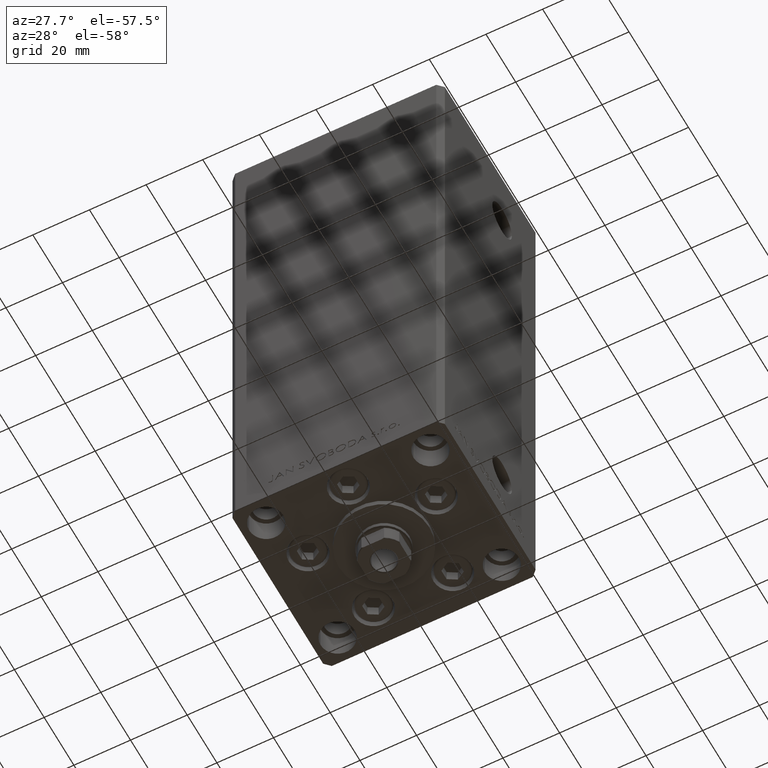
[diagram: clean part render]
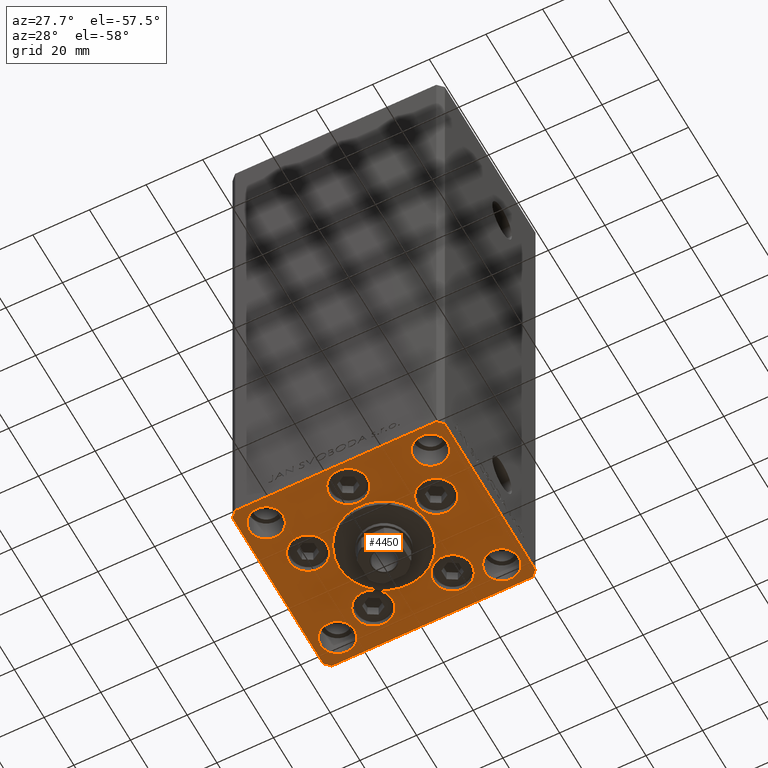
[diagram: same view with one face highlighted and labeled with its STEP entity id]
A machine part, auxiliary view. The second image highlights one B-rep face of the part: STEP entity #4450.
In plain terms, the highlighted planar face has unit normal (0, 0, -1).
Its self-contained STEP definition (entity closure, byte-faithful):
#234 = AXIS2_PLACEMENT_3D ( 'NONE', #21097, #47510, #13120 ) ;
#334 = FACE_BOUND ( 'NONE', #29602, .T. ) ;
#355 = VERTEX_POINT ( 'NONE', #5727 ) ;
#958 = DIRECTION ( 'NONE',  ( 1.000000000000000000, 0.000000000000000000, 0.000000000000000000 ) ) ;
#1072 = CARTESIAN_POINT ( 'NONE',  ( 6.750000000001552536, -24.00000000000001066, 0.000000000000000000 ) ) ;
#1219 = ORIENTED_EDGE ( 'NONE', *, *, #41387, .T. ) ;
#1314 = CARTESIAN_POINT ( 'NONE',  ( -37.50000000000000000, -30.50000000000004263, 0.000000000000000000 ) ) ;
#1488 = CARTESIAN_POINT ( 'NONE',  ( -37.50000000000001421, 30.50000000000000000, 0.000000000000000000 ) ) ;
#1574 = VERTEX_POINT ( 'NONE', #4881 ) ;
#1720 = LINE ( 'NONE', #27433, #40443 ) ;
#2316 = EDGE_CURVE ( 'NONE', #46093, #33522, #25542, .T. ) ;
#2592 = DIRECTION ( 'NONE',  ( 1.000000000000000000, 0.000000000000000000, 0.000000000000000000 ) ) ;
#2709 = EDGE_LOOP ( 'NONE', ( #19123, #30760 ) ) ;
#2819 = EDGE_CURVE ( 'NONE', #14636, #39781, #9950, .T. ) ;
#2868 = ORIENTED_EDGE ( 'NONE', *, *, #38915, .T. ) ;
#3171 = AXIS2_PLACEMENT_3D ( 'NONE', #38399, #37659, #34406 ) ;
#4127 = EDGE_CURVE ( 'NONE', #11736, #21895, #33792, .T. ) ;
#4151 = AXIS2_PLACEMENT_3D ( 'NONE', #18129, #41304, #48791 ) ;
#4312 = EDGE_CURVE ( 'NONE', #42783, #46599, #34617, .T. ) ;
#4450 = ADVANCED_FACE ( 'NONE', ( #19544, #16047, #4569, #27984, #34728, #19791, #27513, #24001, #46461, #334, #23759 ), #42701, .T. ) ;
#4569 = FACE_BOUND ( 'NONE', #12017, .T. ) ;
#4820 = DIRECTION ( 'NONE',  ( 1.000000000000000000, 0.000000000000000000, 0.000000000000000000 ) ) ;
#4825 = LINE ( 'NONE', #1314, #33252 ) ;
#4881 = CARTESIAN_POINT ( 'NONE',  ( 15.87741699796952410, -8.000000000000000000, 0.000000000000000000 ) ) ;
#5280 = LINE ( 'NONE', #34961, #9469 ) ;
#5315 = DIRECTION ( 'NONE',  ( 0.000000000000000000, 0.000000000000000000, 1.000000000000000000 ) ) ;
#5418 = VERTEX_POINT ( 'NONE', #44669 ) ;
#5421 = DIRECTION ( 'NONE',  ( 0.000000000000000000, 0.000000000000000000, 1.000000000000000000 ) ) ;
#5521 = EDGE_CURVE ( 'NONE', #9616, #10985, #29884, .T. ) ;
#5615 = CARTESIAN_POINT ( 'NONE',  ( 0.000000000000000000, -6.938893903907228378E-15, 0.000000000000000000 ) ) ;
#5654 = AXIS2_PLACEMENT_3D ( 'NONE', #21601, #21113, #13137 ) ;
#5678 = CARTESIAN_POINT ( 'NONE',  ( -29.37741699796953654, -8.000000000000000000, 0.000000000000000000 ) ) ;
#5727 = CARTESIAN_POINT ( 'NONE',  ( -37.50000000000001421, 30.50000000000000000, 0.000000000000000000 ) ) ;
#5867 = ORIENTED_EDGE ( 'NONE', *, *, #35420, .T. ) ;
#6253 = DIRECTION ( 'NONE',  ( 1.000000000000000000, 0.000000000000000000, 0.000000000000000000 ) ) ;
#6298 = ORIENTED_EDGE ( 'NONE', *, *, #48301, .F. ) ;
#6687 = EDGE_CURVE ( 'NONE', #9518, #37121, #41836, .T. ) ;
#6868 = ORIENTED_EDGE ( 'NONE', *, *, #33331, .F. ) ;
#6935 = CARTESIAN_POINT ( 'NONE',  ( -29.00000000000000000, -23.99999999999999645, 0.000000000000000000 ) ) ;
#7317 = CARTESIAN_POINT ( 'NONE',  ( -23.00000000000000000, -23.99999999999999645, 0.000000000000000000 ) ) ;
#7927 = LINE ( 'NONE', #35067, #34947 ) ;
#8344 = CARTESIAN_POINT ( 'NONE',  ( -29.00000000000000000, 24.00000000000000711, 0.000000000000000000 ) ) ;
#8409 = AXIS2_PLACEMENT_3D ( 'NONE', #24615, #5421, #958 ) ;
#8766 = CARTESIAN_POINT ( 'NONE',  ( 35.00000000000000000, 24.00000000000000355, 0.000000000000000000 ) ) ;
#9227 = DIRECTION ( 'NONE',  ( 2.275047181608926165E-16, -1.000000000000000000, 0.000000000000000000 ) ) ;
#9357 = VERTEX_POINT ( 'NONE', #10543 ) ;
#9469 = VECTOR ( 'NONE', #46916, 1000.000000000000000 ) ;
#9518 = VERTEX_POINT ( 'NONE', #38433 ) ;
#9616 = VERTEX_POINT ( 'NONE', #8766 ) ;
#9626 = DIRECTION ( 'NONE',  ( 1.000000000000000000, 0.000000000000000000, 0.000000000000000000 ) ) ;
#9813 = ORIENTED_EDGE ( 'NONE', *, *, #27636, .F. ) ;
#9823 = CARTESIAN_POINT ( 'NONE',  ( 29.37741699796954364, -8.000000000000000000, 0.000000000000000000 ) ) ;
#9950 = LINE ( 'NONE', #32376, #30314 ) ;
#9994 = CARTESIAN_POINT ( 'NONE',  ( 29.00000000000000000, 24.00000000000000355, 0.000000000000000000 ) ) ;
#10100 = EDGE_CURVE ( 'NONE', #9357, #39343, #41933, .T. ) ;
#10543 = CARTESIAN_POINT ( 'NONE',  ( -7.241068579633241242, 19.50000000000000000, 0.000000000000000000 ) ) ;
#10585 = DIRECTION ( 'NONE',  ( 0.000000000000000000, 0.000000000000000000, 1.000000000000000000 ) ) ;
#10985 = VERTEX_POINT ( 'NONE', #17022 ) ;
#11140 = CARTESIAN_POINT ( 'NONE',  ( -16.00000000000000355, -6.938893903907228378E-15, 0.000000000000000000 ) ) ;
#11464 = EDGE_CURVE ( 'NONE', #355, #25727, #35631, .T. ) ;
#11543 = EDGE_CURVE ( 'NONE', #46599, #42783, #38846, .T. ) ;
#11736 = VERTEX_POINT ( 'NONE', #5678 ) ;
#11861 = VERTEX_POINT ( 'NONE', #40556 ) ;
#11913 = CARTESIAN_POINT ( 'NONE',  ( 20.74106857963323947, 19.50000000000000000, 0.000000000000000000 ) ) ;
#11916 = CARTESIAN_POINT ( 'NONE',  ( 13.99106857963324124, 19.50000000000000000, 0.000000000000000000 ) ) ;
#12017 = EDGE_LOOP ( 'NONE', ( #6298, #6868 ) ) ;
#12023 = EDGE_CURVE ( 'NONE', #25727, #11861, #4825, .T. ) ;
#12480 = CARTESIAN_POINT ( 'NONE',  ( -35.50000000000000711, 32.49999999999997868, 0.000000000000000000 ) ) ;
#12804 = DIRECTION ( 'NONE',  ( 1.000000000000000000, 0.000000000000000000, 0.000000000000000000 ) ) ;
#12839 = DIRECTION ( 'NONE',  ( 0.000000000000000000, 0.000000000000000000, 1.000000000000000000 ) ) ;
#13120 = DIRECTION ( 'NONE',  ( 1.000000000000000000, 0.000000000000000000, 0.000000000000000000 ) ) ;
#13137 = DIRECTION ( 'NONE',  ( 1.000000000000000000, 0.000000000000000000, 0.000000000000000000 ) ) ;
#13197 = CARTESIAN_POINT ( 'NONE',  ( -22.62741699796953299, -8.000000000000000000, 0.000000000000000000 ) ) ;
#13496 = CARTESIAN_POINT ( 'NONE',  ( 35.50000000000001421, -32.49999999999992184, 0.000000000000000000 ) ) ;
#13594 = ORIENTED_EDGE ( 'NONE', *, *, #25489, .F. ) ;
#13911 = AXIS2_PLACEMENT_3D ( 'NONE', #19108, #34291, #30569 ) ;
#14195 = CARTESIAN_POINT ( 'NONE',  ( 0.000000000000000000, -6.938893903907228378E-15, 0.000000000000000000 ) ) ;
#14234 = AXIS2_PLACEMENT_3D ( 'NONE', #13197, #44093, #24897 ) ;
#14312 = ORIENTED_EDGE ( 'NONE', *, *, #47930, .F. ) ;
#14636 = VERTEX_POINT ( 'NONE', #46513 ) ;
#15814 = ORIENTED_EDGE ( 'NONE', *, *, #4127, .F. ) ;
#16047 = FACE_BOUND ( 'NONE', #33292, .T. ) ;
#16226 = LINE ( 'NONE', #12480, #40639 ) ;
#16836 = AXIS2_PLACEMENT_3D ( 'NONE', #17598, #36775, #33530 ) ;
#16852 = ORIENTED_EDGE ( 'NONE', *, *, #37198, .T. ) ;
#16962 = VECTOR ( 'NONE', #29460, 1000.000000000000000 ) ;
#16986 = CIRCLE ( 'NONE', #46417, 6.750000000000000000 ) ;
#17022 = CARTESIAN_POINT ( 'NONE',  ( 23.00000000000000000, 24.00000000000000355, 0.000000000000000000 ) ) ;
#17548 = ORIENTED_EDGE ( 'NONE', *, *, #31326, .F. ) ;
#17581 = VERTEX_POINT ( 'NONE', #7317 ) ;
#17598 = CARTESIAN_POINT ( 'NONE',  ( -29.00000000000000000, 24.00000000000000711, 0.000000000000000000 ) ) ;
#17738 = CARTESIAN_POINT ( 'NONE',  ( 37.50000000000000711, -30.49999999999992895, 0.000000000000000000 ) ) ;
#17955 = CARTESIAN_POINT ( 'NONE',  ( -15.87741699796953476, -8.000000000000000000, 0.000000000000000000 ) ) ;
#18129 = CARTESIAN_POINT ( 'NONE',  ( -29.00000000000000000, -23.99999999999999645, 0.000000000000000000 ) ) ;
#18306 = AXIS2_PLACEMENT_3D ( 'NONE', #46986, #12839, #20827 ) ;
#18418 = AXIS2_PLACEMENT_3D ( 'NONE', #9994, #40386, #6253 ) ;
#18526 = VERTEX_POINT ( 'NONE', #11913 ) ;
#18723 = CARTESIAN_POINT ( 'NONE',  ( -35.00000000000000000, 24.00000000000000711, 0.000000000000000000 ) ) ;
#19108 = CARTESIAN_POINT ( 'NONE',  ( -22.62741699796953299, -8.000000000000000000, 0.000000000000000000 ) ) ;
#19123 = ORIENTED_EDGE ( 'NONE', *, *, #4312, .F. ) ;
#19353 = CIRCLE ( 'NONE', #21728, 6.750000000001552536 ) ;
#19392 = DIRECTION ( 'NONE',  ( 0.000000000000000000, 1.000000000000000000, 0.000000000000000000 ) ) ;
#19544 = FACE_BOUND ( 'NONE', #2709, .T. ) ;
#19645 = DIRECTION ( 'NONE',  ( 1.000000000000000000, 0.000000000000000000, 0.000000000000000000 ) ) ;
#19791 = FACE_BOUND ( 'NONE', #27254, .T. ) ;
#19869 = CARTESIAN_POINT ( 'NONE',  ( -6.750000000001552536, -24.00000000000001066, 0.000000000000000000 ) ) ;
#19933 = ORIENTED_EDGE ( 'NONE', *, *, #27763, .F. ) ;
#20086 = EDGE_LOOP ( 'NONE', ( #13594, #9813 ) ) ;
#20458 = AXIS2_PLACEMENT_3D ( 'NONE', #32012, #47232, #25018 ) ;
#20827 = DIRECTION ( 'NONE',  ( 1.000000000000000000, 0.000000000000000000, 0.000000000000000000 ) ) ;
#20860 = ORIENTED_EDGE ( 'NONE', *, *, #31586, .T. ) ;
#21097 = CARTESIAN_POINT ( 'NONE',  ( 0.000000000000000000, -24.00000000000001066, 0.000000000000000000 ) ) ;
#21113 = DIRECTION ( 'NONE',  ( 0.000000000000000000, 0.000000000000000000, 1.000000000000000000 ) ) ;
#21601 = CARTESIAN_POINT ( 'NONE',  ( 29.00000000000000355, -23.99999999999999645, 0.000000000000000000 ) ) ;
#21728 = AXIS2_PLACEMENT_3D ( 'NONE', #36992, #10585, #2592 ) ;
#21895 = VERTEX_POINT ( 'NONE', #17955 ) ;
#22134 = DIRECTION ( 'NONE',  ( 1.000000000000000000, 0.000000000000000000, 0.000000000000000000 ) ) ;
#23208 = CIRCLE ( 'NONE', #18418, 6.000000000000001776 ) ;
#23643 = DIRECTION ( 'NONE',  ( 1.000000000000000000, 0.000000000000000000, 0.000000000000000000 ) ) ;
#23759 = FACE_OUTER_BOUND ( 'NONE', #37422, .T. ) ;
#23919 = DIRECTION ( 'NONE',  ( 1.000000000000000000, 1.172770800660376149E-15, 0.000000000000000000 ) ) ;
#24001 = FACE_BOUND ( 'NONE', #48500, .T. ) ;
#24550 = DIRECTION ( 'NONE',  ( 0.000000000000000000, 0.000000000000000000, 1.000000000000000000 ) ) ;
#24615 = CARTESIAN_POINT ( 'NONE',  ( 29.00000000000000000, 24.00000000000000355, 0.000000000000000000 ) ) ;
#24897 = DIRECTION ( 'NONE',  ( 1.000000000000000000, 0.000000000000000000, 0.000000000000000000 ) ) ;
#25018 = DIRECTION ( 'NONE',  ( 1.000000000000000000, 0.000000000000000000, 0.000000000000000000 ) ) ;
#25489 = EDGE_CURVE ( 'NONE', #17581, #5418, #35206, .T. ) ;
#25541 = CARTESIAN_POINT ( 'NONE',  ( -37.50000000000000000, -30.50000000000004263, 0.000000000000000000 ) ) ;
#25542 = CIRCLE ( 'NONE', #5654, 5.999999999999998224 ) ;
#25727 = VERTEX_POINT ( 'NONE', #25541 ) ;
#26167 = ORIENTED_EDGE ( 'NONE', *, *, #12023, .T. ) ;
#26189 = CIRCLE ( 'NONE', #14234, 6.749999999999999112 ) ;
#26318 = CARTESIAN_POINT ( 'NONE',  ( 35.00000000000000000, -23.99999999999999645, 0.000000000000000000 ) ) ;
#26574 = ORIENTED_EDGE ( 'NONE', *, *, #40445, .F. ) ;
#26633 = CARTESIAN_POINT ( 'NONE',  ( -20.74106857963324302, 19.50000000000000000, 0.000000000000000000 ) ) ;
#26657 = EDGE_LOOP ( 'NONE', ( #28497, #17548 ) ) ;
#26862 = EDGE_CURVE ( 'NONE', #41061, #48496, #44791, .T. ) ;
#27077 = CARTESIAN_POINT ( 'NONE',  ( 35.50000000000000000, 32.49999999999999289, 0.000000000000000000 ) ) ;
#27122 = DIRECTION ( 'NONE',  ( 0.000000000000000000, 0.000000000000000000, 1.000000000000000000 ) ) ;
#27254 = EDGE_LOOP ( 'NONE', ( #29333, #15814 ) ) ;
#27332 = CIRCLE ( 'NONE', #28916, 6.750000000000009770 ) ;
#27433 = CARTESIAN_POINT ( 'NONE',  ( -35.50000000000001421, -32.50000000000000711, 0.000000000000000000 ) ) ;
#27513 = FACE_BOUND ( 'NONE', #35176, .T. ) ;
#27636 = EDGE_CURVE ( 'NONE', #5418, #17581, #29666, .T. ) ;
#27763 = EDGE_CURVE ( 'NONE', #1574, #33646, #27332, .T. ) ;
#27984 = FACE_BOUND ( 'NONE', #45663, .T. ) ;
#28497 = ORIENTED_EDGE ( 'NONE', *, *, #26862, .F. ) ;
#28916 = AXIS2_PLACEMENT_3D ( 'NONE', #43279, #35791, #9626 ) ;
#29333 = ORIENTED_EDGE ( 'NONE', *, *, #38383, .F. ) ;
#29460 = DIRECTION ( 'NONE',  ( -1.000000000000000000, -1.954618001100627573E-16, 0.000000000000000000 ) ) ;
#29486 = VERTEX_POINT ( 'NONE', #17738 ) ;
#29602 = EDGE_LOOP ( 'NONE', ( #43657, #26574 ) ) ;
#29650 = DIRECTION ( 'NONE',  ( 1.000000000000000000, 0.000000000000000000, 0.000000000000000000 ) ) ;
#29666 = CIRCLE ( 'NONE', #36022, 6.000000000000001776 ) ;
#29764 = CARTESIAN_POINT ( 'NONE',  ( 7.241068579633242130, 19.50000000000000000, 0.000000000000000000 ) ) ;
#29884 = CIRCLE ( 'NONE', #8409, 6.000000000000001776 ) ;
#29949 = DIRECTION ( 'NONE',  ( 0.000000000000000000, 0.000000000000000000, 1.000000000000000000 ) ) ;
#30314 = VECTOR ( 'NONE', #48326, 1000.000000000000000 ) ;
#30569 = DIRECTION ( 'NONE',  ( 1.000000000000000000, 0.000000000000000000, 0.000000000000000000 ) ) ;
#30760 = ORIENTED_EDGE ( 'NONE', *, *, #11543, .F. ) ;
#31125 = ORIENTED_EDGE ( 'NONE', *, *, #44083, .F. ) ;
#31326 = EDGE_CURVE ( 'NONE', #48496, #41061, #19353, .T. ) ;
#31586 = EDGE_CURVE ( 'NONE', #39781, #47709, #48656, .T. ) ;
#31611 = ORIENTED_EDGE ( 'NONE', *, *, #2819, .T. ) ;
#31858 = CARTESIAN_POINT ( 'NONE',  ( 13.99106857963324124, 19.50000000000000000, 0.000000000000000000 ) ) ;
#32012 = CARTESIAN_POINT ( 'NONE',  ( -13.99106857963324124, 19.50000000000000000, 0.000000000000000000 ) ) ;
#32032 = DIRECTION ( 'NONE',  ( 1.000000000000000000, 0.000000000000000000, 0.000000000000000000 ) ) ;
#32376 = CARTESIAN_POINT ( 'NONE',  ( 37.50000000000000711, 30.50000000000001421, 0.000000000000000000 ) ) ;
#32522 = AXIS2_PLACEMENT_3D ( 'NONE', #11916, #27122, #19645 ) ;
#32697 = CARTESIAN_POINT ( 'NONE',  ( 35.50000000000000000, 32.49999999999999289, 0.000000000000000000 ) ) ;
#33106 = ORIENTED_EDGE ( 'NONE', *, *, #40934, .F. ) ;
#33252 = VECTOR ( 'NONE', #42948, 1000.000000000000000 ) ;
#33292 = EDGE_LOOP ( 'NONE', ( #40093, #14312 ) ) ;
#33331 = EDGE_CURVE ( 'NONE', #46894, #18526, #47656, .T. ) ;
#33522 = VERTEX_POINT ( 'NONE', #34765 ) ;
#33530 = DIRECTION ( 'NONE',  ( 1.000000000000000000, 0.000000000000000000, 0.000000000000000000 ) ) ;
#33646 = VERTEX_POINT ( 'NONE', #9823 ) ;
#33658 = AXIS2_PLACEMENT_3D ( 'NONE', #31858, #47068, #23643 ) ;
#33792 = CIRCLE ( 'NONE', #13911, 6.749999999999999112 ) ;
#34291 = DIRECTION ( 'NONE',  ( 0.000000000000000000, 0.000000000000000000, 1.000000000000000000 ) ) ;
#34406 = DIRECTION ( 'NONE',  ( 1.000000000000000000, 0.000000000000000000, 0.000000000000000000 ) ) ;
#34617 = CIRCLE ( 'NONE', #47365, 16.00000000000000355 ) ;
#34728 = FACE_BOUND ( 'NONE', #26657, .T. ) ;
#34765 = CARTESIAN_POINT ( 'NONE',  ( 23.00000000000000711, -23.99999999999999645, 0.000000000000000000 ) ) ;
#34947 = VECTOR ( 'NONE', #19392, 1000.000000000000000 ) ;
#34961 = CARTESIAN_POINT ( 'NONE',  ( 35.50000000000001421, -32.49999999999992184, 0.000000000000000000 ) ) ;
#35067 = CARTESIAN_POINT ( 'NONE',  ( 37.50000000000000711, -30.49999999999992895, 0.000000000000000000 ) ) ;
#35176 = EDGE_LOOP ( 'NONE', ( #44748, #37471 ) ) ;
#35206 = CIRCLE ( 'NONE', #4151, 6.000000000000001776 ) ;
#35223 = DIRECTION ( 'NONE',  ( -0.000000000000000000, 0.000000000000000000, 1.000000000000000000 ) ) ;
#35420 = EDGE_CURVE ( 'NONE', #29486, #14636, #7927, .T. ) ;
#35631 = LINE ( 'NONE', #1488, #49200 ) ;
#35791 = DIRECTION ( 'NONE',  ( 0.000000000000000000, 0.000000000000000000, 1.000000000000000000 ) ) ;
#35898 = CIRCLE ( 'NONE', #16836, 6.000000000000001776 ) ;
#36022 = AXIS2_PLACEMENT_3D ( 'NONE', #6935, #37580, #22134 ) ;
#36271 = AXIS2_PLACEMENT_3D ( 'NONE', #8344, #5315, #12804 ) ;
#36775 = DIRECTION ( 'NONE',  ( 0.000000000000000000, 0.000000000000000000, 1.000000000000000000 ) ) ;
#36992 = CARTESIAN_POINT ( 'NONE',  ( 0.000000000000000000, -24.00000000000001066, 0.000000000000000000 ) ) ;
#37121 = VERTEX_POINT ( 'NONE', #18723 ) ;
#37198 = EDGE_CURVE ( 'NONE', #11861, #38015, #1720, .T. ) ;
#37240 = AXIS2_PLACEMENT_3D ( 'NONE', #14195, #40869, #29650 ) ;
#37422 = EDGE_LOOP ( 'NONE', ( #26167, #16852, #2868, #5867, #31611, #20860, #1219, #39906 ) ) ;
#37471 = ORIENTED_EDGE ( 'NONE', *, *, #44308, .F. ) ;
#37580 = DIRECTION ( 'NONE',  ( 0.000000000000000000, 0.000000000000000000, 1.000000000000000000 ) ) ;
#37659 = DIRECTION ( 'NONE',  ( 0.000000000000000000, 0.000000000000000000, 1.000000000000000000 ) ) ;
#37909 = DIRECTION ( 'NONE',  ( 1.000000000000000000, 0.000000000000000000, 0.000000000000000000 ) ) ;
#38015 = VERTEX_POINT ( 'NONE', #13496 ) ;
#38383 = EDGE_CURVE ( 'NONE', #21895, #11736, #26189, .T. ) ;
#38399 = CARTESIAN_POINT ( 'NONE',  ( 29.00000000000000355, -23.99999999999999645, 0.000000000000000000 ) ) ;
#38433 = CARTESIAN_POINT ( 'NONE',  ( -23.00000000000000000, 24.00000000000000711, 0.000000000000000000 ) ) ;
#38846 = CIRCLE ( 'NONE', #37240, 16.00000000000000355 ) ;
#38915 = EDGE_CURVE ( 'NONE', #38015, #29486, #5280, .T. ) ;
#39207 = CARTESIAN_POINT ( 'NONE',  ( 0.000000000000000000, 0.000000000000000000, 0.000000000000000000 ) ) ;
#39343 = VERTEX_POINT ( 'NONE', #26633 ) ;
#39781 = VERTEX_POINT ( 'NONE', #27077 ) ;
#39880 = ORIENTED_EDGE ( 'NONE', *, *, #6687, .F. ) ;
#39906 = ORIENTED_EDGE ( 'NONE', *, *, #11464, .T. ) ;
#40093 = ORIENTED_EDGE ( 'NONE', *, *, #10100, .F. ) ;
#40386 = DIRECTION ( 'NONE',  ( 0.000000000000000000, 0.000000000000000000, 1.000000000000000000 ) ) ;
#40443 = VECTOR ( 'NONE', #23919, 1000.000000000000000 ) ;
#40445 = EDGE_CURVE ( 'NONE', #33522, #46093, #46162, .T. ) ;
#40556 = CARTESIAN_POINT ( 'NONE',  ( -35.50000000000001421, -32.50000000000000711, 0.000000000000000000 ) ) ;
#40639 = VECTOR ( 'NONE', #43119, 1000.000000000000000 ) ;
#40869 = DIRECTION ( 'NONE',  ( 0.000000000000000000, 0.000000000000000000, 1.000000000000000000 ) ) ;
#40934 = EDGE_CURVE ( 'NONE', #33646, #1574, #41389, .T. ) ;
#41061 = VERTEX_POINT ( 'NONE', #1072 ) ;
#41304 = DIRECTION ( 'NONE',  ( 0.000000000000000000, 0.000000000000000000, 1.000000000000000000 ) ) ;
#41387 = EDGE_CURVE ( 'NONE', #47709, #355, #16226, .T. ) ;
#41389 = CIRCLE ( 'NONE', #18306, 6.750000000000009770 ) ;
#41836 = CIRCLE ( 'NONE', #36271, 6.000000000000001776 ) ;
#41933 = CIRCLE ( 'NONE', #20458, 6.750000000000000000 ) ;
#42152 = CARTESIAN_POINT ( 'NONE',  ( -13.99106857963324124, 19.50000000000000000, 0.000000000000000000 ) ) ;
#42701 = PLANE ( 'NONE',  #46591 ) ;
#42783 = VERTEX_POINT ( 'NONE', #11140 ) ;
#42948 = DIRECTION ( 'NONE',  ( 0.7071067811865512365, -0.7071067811865439090, 0.000000000000000000 ) ) ;
#43119 = DIRECTION ( 'NONE',  ( -0.7071067811865524577, -0.7071067811865426878, 0.000000000000000000 ) ) ;
#43279 = CARTESIAN_POINT ( 'NONE',  ( 22.62741699796953299, -8.000000000000000000, 0.000000000000000000 ) ) ;
#43657 = ORIENTED_EDGE ( 'NONE', *, *, #2316, .F. ) ;
#44083 = EDGE_CURVE ( 'NONE', #37121, #9518, #35898, .T. ) ;
#44093 = DIRECTION ( 'NONE',  ( 0.000000000000000000, 0.000000000000000000, 1.000000000000000000 ) ) ;
#44308 = EDGE_CURVE ( 'NONE', #10985, #9616, #23208, .T. ) ;
#44669 = CARTESIAN_POINT ( 'NONE',  ( -35.00000000000000000, -23.99999999999999645, 0.000000000000000000 ) ) ;
#44748 = ORIENTED_EDGE ( 'NONE', *, *, #5521, .F. ) ;
#44791 = CIRCLE ( 'NONE', #234, 6.750000000001552536 ) ;
#45615 = CIRCLE ( 'NONE', #33658, 6.749999999999997335 ) ;
#45663 = EDGE_LOOP ( 'NONE', ( #33106, #19933 ) ) ;
#45947 = CARTESIAN_POINT ( 'NONE',  ( -35.50000000000000711, 32.49999999999997868, 0.000000000000000000 ) ) ;
#45996 = CARTESIAN_POINT ( 'NONE',  ( 16.00000000000000355, -4.979459025271462852E-15, 0.000000000000000000 ) ) ;
#46093 = VERTEX_POINT ( 'NONE', #26318 ) ;
#46162 = CIRCLE ( 'NONE', #3171, 5.999999999999998224 ) ;
#46417 = AXIS2_PLACEMENT_3D ( 'NONE', #42152, #29949, #37909 ) ;
#46461 = FACE_BOUND ( 'NONE', #20086, .T. ) ;
#46513 = CARTESIAN_POINT ( 'NONE',  ( 37.50000000000000711, 30.50000000000001421, 0.000000000000000000 ) ) ;
#46591 = AXIS2_PLACEMENT_3D ( 'NONE', #39207, #35223, #4820 ) ;
#46599 = VERTEX_POINT ( 'NONE', #45996 ) ;
#46894 = VERTEX_POINT ( 'NONE', #29764 ) ;
#46916 = DIRECTION ( 'NONE',  ( 0.7071067811865463515, 0.7071067811865487940, 0.000000000000000000 ) ) ;
#46986 = CARTESIAN_POINT ( 'NONE',  ( 22.62741699796953299, -8.000000000000000000, 0.000000000000000000 ) ) ;
#47068 = DIRECTION ( 'NONE',  ( 0.000000000000000000, 0.000000000000000000, 1.000000000000000000 ) ) ;
#47232 = DIRECTION ( 'NONE',  ( 0.000000000000000000, 0.000000000000000000, 1.000000000000000000 ) ) ;
#47365 = AXIS2_PLACEMENT_3D ( 'NONE', #5615, #24550, #32032 ) ;
#47510 = DIRECTION ( 'NONE',  ( 0.000000000000000000, 0.000000000000000000, 1.000000000000000000 ) ) ;
#47656 = CIRCLE ( 'NONE', #32522, 6.749999999999997335 ) ;
#47709 = VERTEX_POINT ( 'NONE', #45947 ) ;
#47930 = EDGE_CURVE ( 'NONE', #39343, #9357, #16986, .T. ) ;
#48301 = EDGE_CURVE ( 'NONE', #18526, #46894, #45615, .T. ) ;
#48326 = DIRECTION ( 'NONE',  ( -0.7071067811865524577, 0.7071067811865426878, 0.000000000000000000 ) ) ;
#48496 = VERTEX_POINT ( 'NONE', #19869 ) ;
#48500 = EDGE_LOOP ( 'NONE', ( #39880, #31125 ) ) ;
#48656 = LINE ( 'NONE', #32697, #16962 ) ;
#48791 = DIRECTION ( 'NONE',  ( 1.000000000000000000, 0.000000000000000000, 0.000000000000000000 ) ) ;
#49200 = VECTOR ( 'NONE', #9227, 1000.000000000000000 ) ;